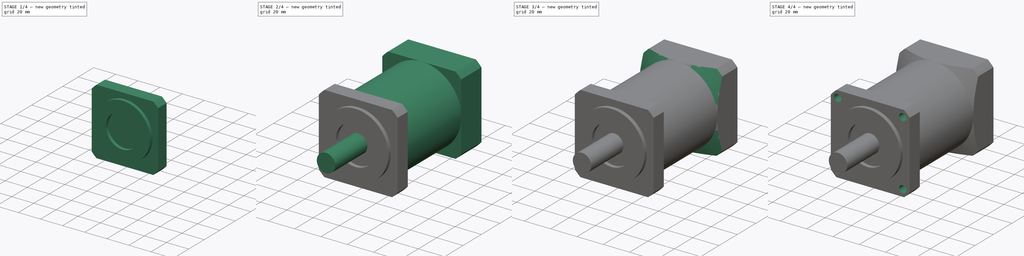
[diagram: build sequence overview — one tinted view per stage of 4, left to right]
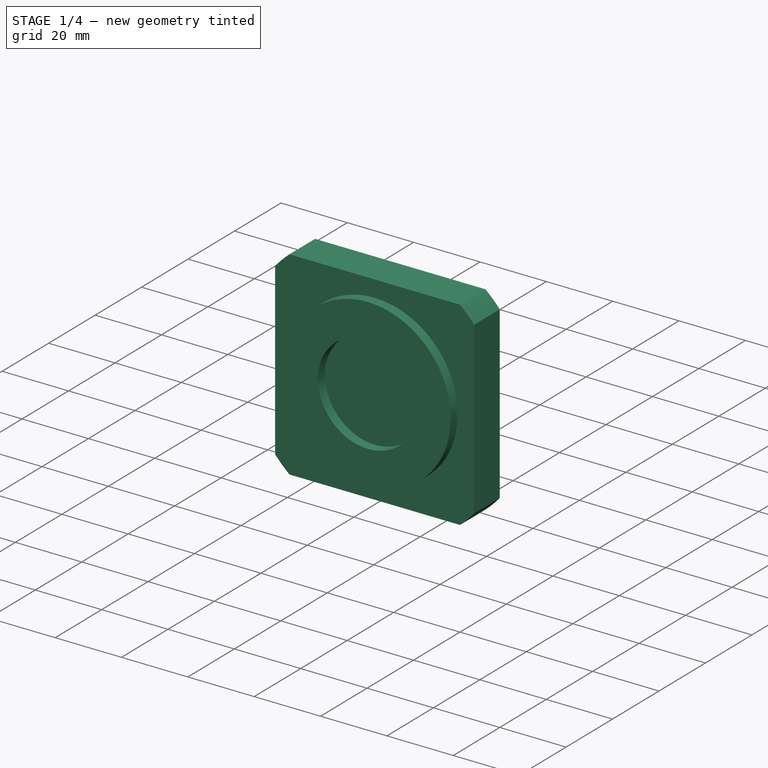
[diagram: stage 1 of 4 — iso view after this stage's code; geometry added in this stage tinted green]
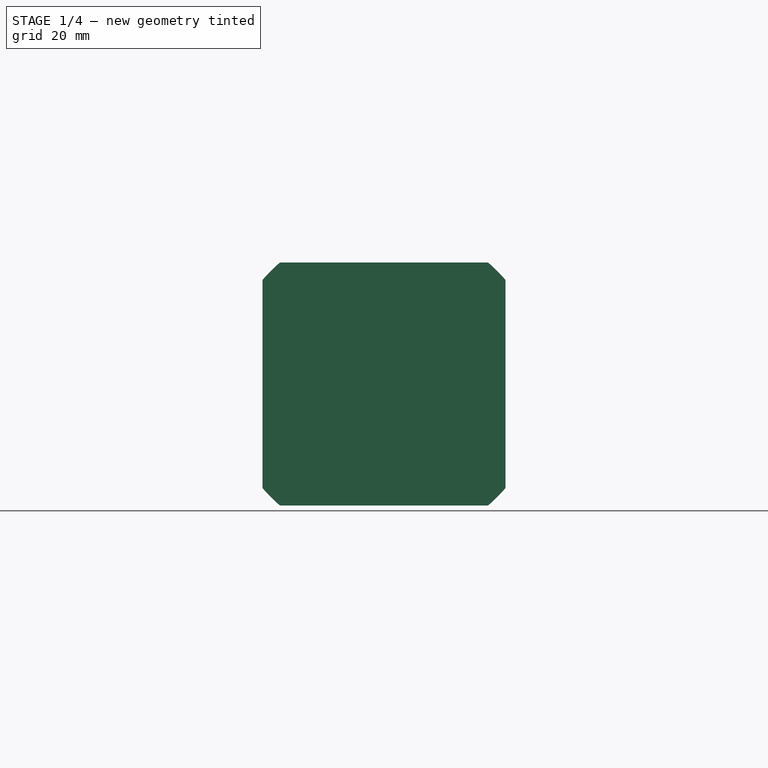
[diagram: stage 1 of 4 — front view after this stage's code; geometry added in this stage tinted green]
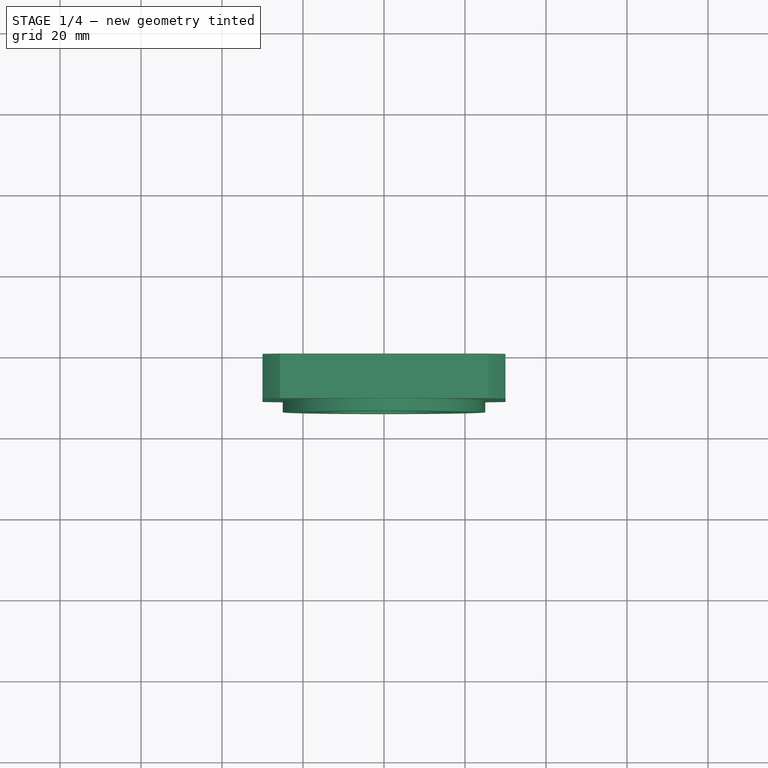
[diagram: stage 1 of 4 — top view after this stage's code; geometry added in this stage tinted green]
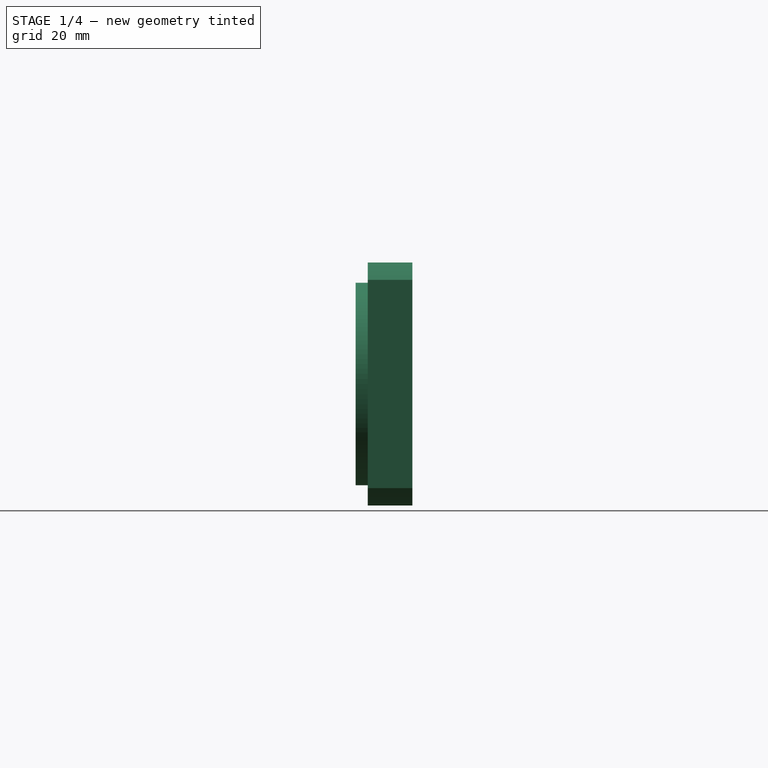
[diagram: stage 1 of 4 — right view after this stage's code; geometry added in this stage tinted green]
FCSTD DOCUMENT  (FreeCAD 0.19R23742 (Git))
Label: gearbox
License: All rights reserved
LicenseURL: http://en.wikipedia.org/wiki/All_rights_reserved
objects: Sketcher::SketchObject×10, PartDesign::Pad×5, PartDesign::Pocket×2, PartDesign::Hole×2, PartDesign::Groove×1, PartDesign::Body×1
note: 31 computed .brp shape members not serialized (recipe doc carries the construction recipe); baked Part::Feature solids carry a one-line shape summary decoded from their .brp

FEATURE [Sketcher::SketchObject] Sketch
  FullyConstrained = true
  MapMode = 5
  Placement = pos=(0,0,0) rot=(1,0,0;1.5708rad)
  Support = -> [XZ_Plane]
  sketch-geometry (8):
    g0: LineSegment StartX=-25.6953 StartY=30 StartZ=0 EndX=25.6953 EndY=30 EndZ=0
    g1: LineSegment StartX=30 StartY=25.6953 StartZ=0 EndX=30 EndY=-25.6953 EndZ=0
    g2: LineSegment StartX=25.6953 StartY=-30 StartZ=0 EndX=-25.6953 EndY=-30 EndZ=0
    g3: LineSegment StartX=-30 StartY=-25.6953 StartZ=0 EndX=-30 EndY=25.6953 EndZ=0
    g4: ArcOfCircle CenterX=0 CenterY=0 CenterZ=0 NormalX=0 NormalY=0 NormalZ=1 AngleXU=0 Radius=39.5 StartAngle=3.84985 EndAngle=4.00413
    g5: ArcOfCircle CenterX=0 CenterY=0 CenterZ=0 NormalX=0 NormalY=0 NormalZ=1 AngleXU=0 Radius=39.5 StartAngle=2.27906 EndAngle=2.43333
    g6: ArcOfCircle CenterX=0 CenterY=0 CenterZ=0 NormalX=0 NormalY=0 NormalZ=1 AngleXU=0 Radius=39.5 StartAngle=0.708262 EndAngle=0.862534
    g7: ArcOfCircle CenterX=0 CenterY=0 CenterZ=0 NormalX=0 NormalY=0 NormalZ=1 AngleXU=0 Radius=39.5 StartAngle=5.42065 EndAngle=5.57492
  constraints (24):
    c: Horizontal(g0)
    c: Horizontal(g2)
    c: Vertical(g1)
    c: Vertical(g3)
    c: Coincident(g4,g-1)
    c: Radius(g4) = 39.5
    c: Coincident(g5,g3)
    c: Equal(g4,g5)
    c: Coincident(g5,g0)
    c: Coincident(g4,g5)
    c: Coincident(g0,g6)
    c: Equal(g4,g6)
    c: Coincident(g6,g1)
    c: Coincident(g4,g6)
    c: Coincident(g1,g7)
    c: Equal(g4,g7)
    c: Coincident(g7,g2)
    c: Coincident(g4,g7)
    c: Coincident(g3,g4)
    c: Coincident(g2,g4)
    c: DistanceX(g3,g1) = 60
    c: DistanceY(g2,g0) = 60
    c: Equal(g0,g2)
    c: Equal(g3,g1)
FEATURE [PartDesign::Pad] Pad
  Direction = (1,1,1)
  Length = 11
  Length2 = 100
  Placement = pos=(0,0,0) rot=(1,0,0;1.5708rad)
  Profile = -> Sketch
  Type = 0
FEATURE [Sketcher::SketchObject] Sketch001
  FullyConstrained = true
  MapMode = 5
  Placement = pos=(0,-11,4.9e-15) rot=(1,0,0;1.5708rad)
  Support = -> [Pad]
  sketch-geometry (2):
    g0: Circle CenterX=0 CenterY=0 CenterZ=0 NormalX=0 NormalY=0 NormalZ=1 AngleXU=0 Radius=25
    g1: Circle CenterX=0 CenterY=0 CenterZ=0 NormalX=0 NormalY=0 NormalZ=1 AngleXU=0 Radius=15
  constraints (4):
    c: Coincident(g0,g-1)
    c: Radius(g0) = 25
    c: Coincident(g1,g0)
    c: Radius(g1) = 15
FEATURE [PartDesign::Pad] Pad001
  BaseFeature = -> Pad
  Direction = (1,1,1)
  Length = 3
  Length2 = 100
  Placement = pos=(0,0,0) rot=(1,0,0;1.5708rad)
  Profile = -> Sketch001
  Type = 0
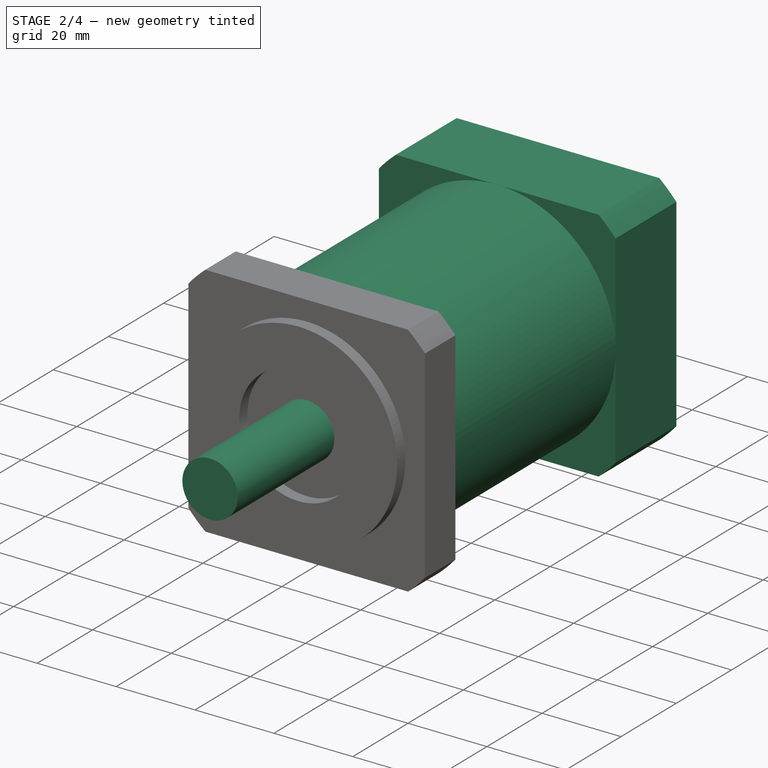
[diagram: stage 2 of 4 — iso view after this stage's code; geometry added in this stage tinted green]
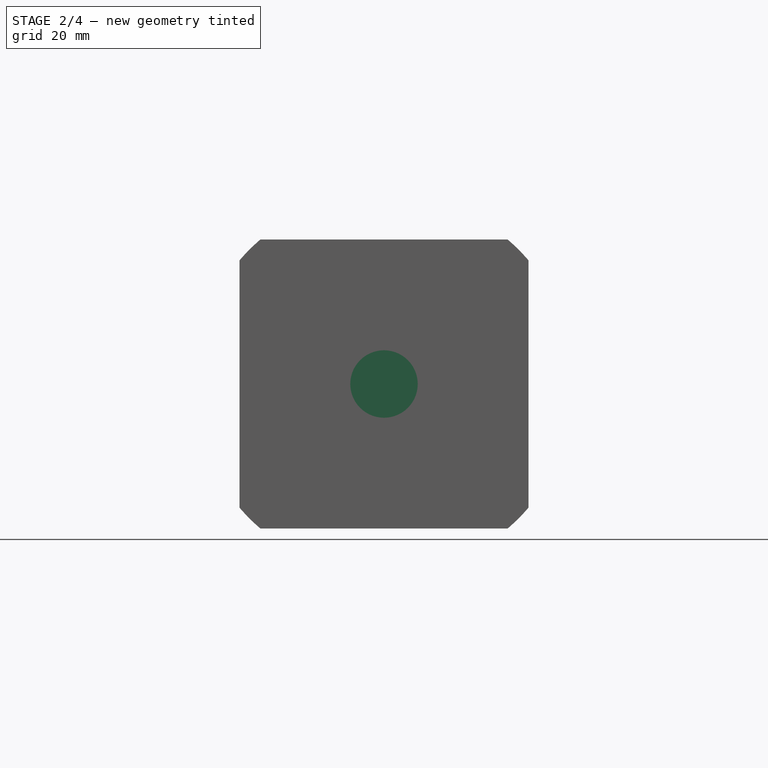
[diagram: stage 2 of 4 — front view after this stage's code; geometry added in this stage tinted green]
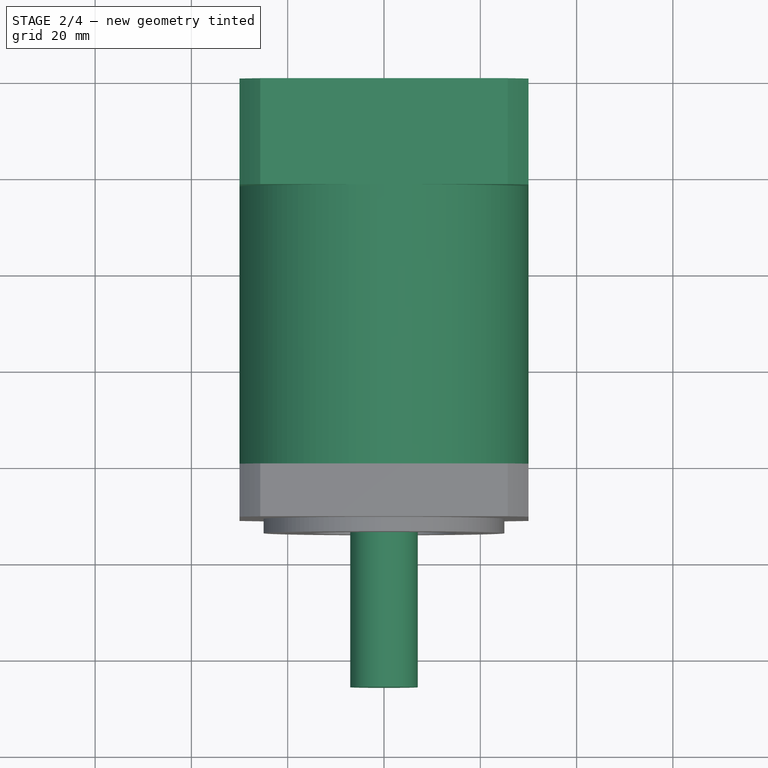
[diagram: stage 2 of 4 — top view after this stage's code; geometry added in this stage tinted green]
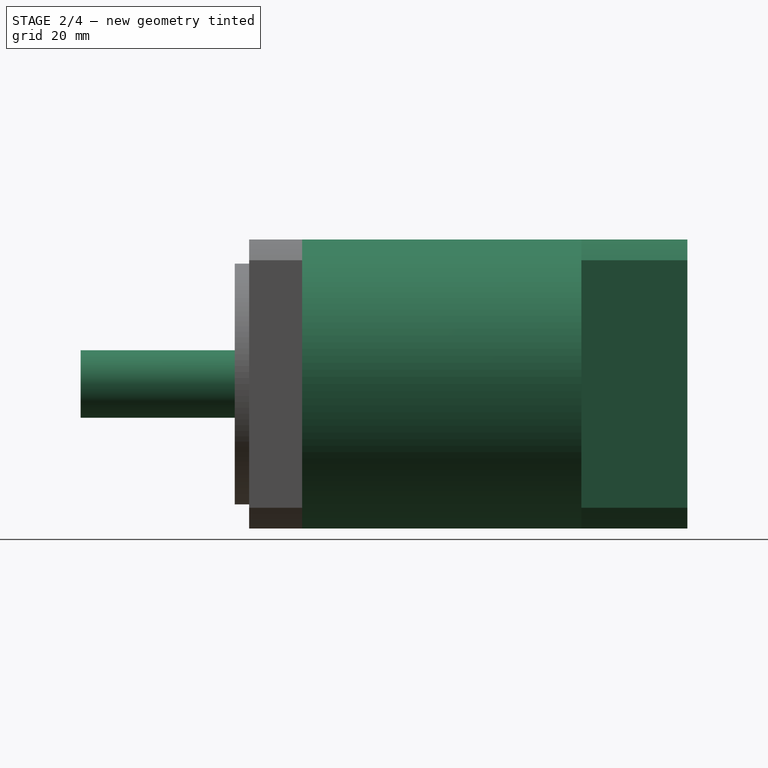
[diagram: stage 2 of 4 — right view after this stage's code; geometry added in this stage tinted green]
FEATURE [Sketcher::SketchObject] Sketch002
  FullyConstrained = true
  MapMode = 5
  Placement = pos=(0,-11,4.9e-15) rot=(1,0,0;1.5708rad)
  Support = -> [Pad001]
  sketch-geometry (1):
    g0: Circle CenterX=0 CenterY=0 CenterZ=0 NormalX=0 NormalY=0 NormalZ=1 AngleXU=0 Radius=7
  constraints (2):
    c: Coincident(g0,g-1)
    c: Radius(g0) = 7
FEATURE [PartDesign::Pad] Pad002
  BaseFeature = -> Pad001
  Direction = (1,1,1)
  Length = 35
  Length2 = 100
  Placement = pos=(0,0,0) rot=(1,0,0;1.5708rad)
  Profile = -> Sketch002
  Type = 0
FEATURE [Sketcher::SketchObject] Sketch003
  FullyConstrained = true
  MapMode = 5
  Placement = pos=(0,0,0) rot=(-1,0,0;1.5708rad)
  Support = -> [Pad002]
  sketch-geometry (1):
    g0: Circle CenterX=0 CenterY=0 CenterZ=0 NormalX=0 NormalY=0 NormalZ=1 AngleXU=0 Radius=30
  constraints (2):
    c: Coincident(g0,g-1)
    c: Radius(g0) = 30
FEATURE [PartDesign::Pad] Pad003
  BaseFeature = -> Pad002
  Direction = (1,1,1)
  Length = 58
  Length2 = 100
  Placement = pos=(0,0,0) rot=(1,0,0;1.5708rad)
  Profile = -> Sketch003
  Type = 0
FEATURE [Sketcher::SketchObject] Sketch004
  ExternalGeometry = -> [Pad003]
  FullyConstrained = true
  MapMode = 5
  Placement = pos=(0,58,-9e-14) rot=(-1,0,0;1.5708rad)
  Support = -> [Pad003]
  sketch-geometry (8):
    g0: ArcOfCircle CenterX=0 CenterY=0 CenterZ=0 NormalX=0 NormalY=0 NormalZ=1 AngleXU=0 Radius=39.5 StartAngle=3.84985 EndAngle=4.00413
    g1: LineSegment StartX=-25.6953 StartY=30 StartZ=0 EndX=25.6953 EndY=30 EndZ=0
    g2: LineSegment StartX=30 StartY=25.6953 StartZ=0 EndX=30 EndY=-25.6953 EndZ=0
    g3: LineSegment StartX=25.6953 StartY=-30 StartZ=0 EndX=-25.6953 EndY=-30 EndZ=0
    g4: LineSegment StartX=-30 StartY=-25.6953 StartZ=0 EndX=-30 EndY=25.6953 EndZ=0
    g5: ArcOfCircle CenterX=0 CenterY=0 CenterZ=0 NormalX=0 NormalY=0 NormalZ=1 AngleXU=0 Radius=39.5 StartAngle=5.42065 EndAngle=5.57492
    g6: ArcOfCircle CenterX=0 CenterY=0 CenterZ=0 NormalX=0 NormalY=0 NormalZ=1 AngleXU=0 Radius=39.5 StartAngle=0.708262 EndAngle=0.862534
    g7: ArcOfCircle CenterX=0 CenterY=0 CenterZ=0 NormalX=0 NormalY=0 NormalZ=1 AngleXU=0 Radius=39.5 StartAngle=2.27906 EndAngle=2.43333
  constraints (22):
    c: Coincident(g0,g-1)
    c: Equal(g-3,g0)
    c: Horizontal(g1)
    c: Horizontal(g3)
    c: Vertical(g2)
    c: Vertical(g4)
    c: Coincident(g0,g4)
    c: Coincident(g0,g3)
    c: Coincident(g0,g5)
    c: Coincident(g3,g5)
    c: Coincident(g5,g2)
    c: Coincident(g5,g6)
    c: Coincident(g2,g6)
    c: Equal(g6,g7)
    c: Coincident(g6,g1)
    c: Coincident(g6,g7)
    c: Coincident(g4,g7)
    c: Coincident(g1,g7)
    c: Equal(g1,g3)
    c: Equal(g2,g4)
    c: Symmetric(g3,g3,g-4)
    c: Symmetric(g2,g2,g-5)
FEATURE [PartDesign::Pad] Pad004
  BaseFeature = -> Pad003
  Direction = (1,1,1)
  Length = 22
  Length2 = 100
  Placement = pos=(0,0,0) rot=(1,0,0;1.5708rad)
  Profile = -> Sketch004
  Type = 0
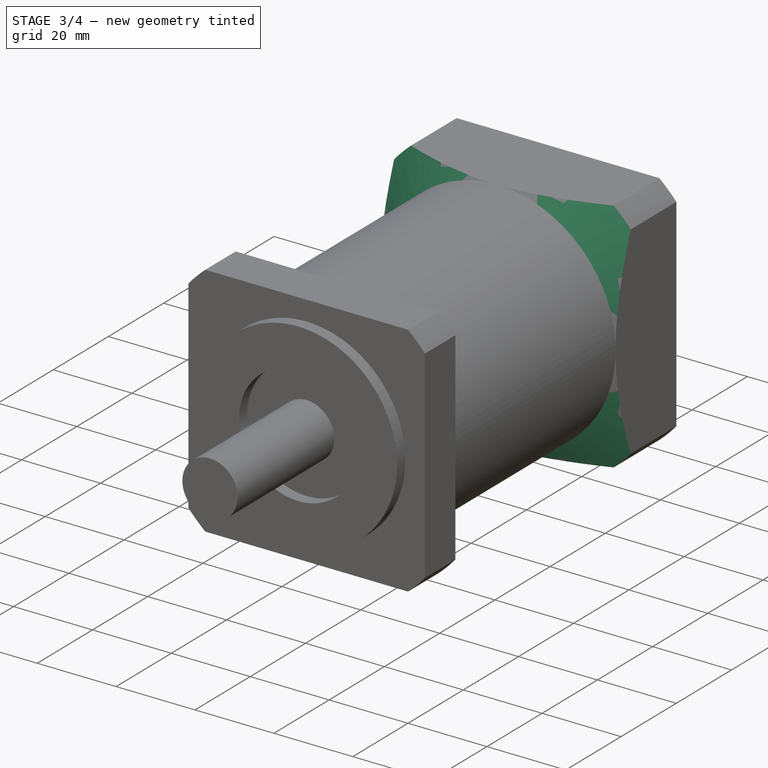
[diagram: stage 3 of 4 — iso view after this stage's code; geometry added in this stage tinted green]
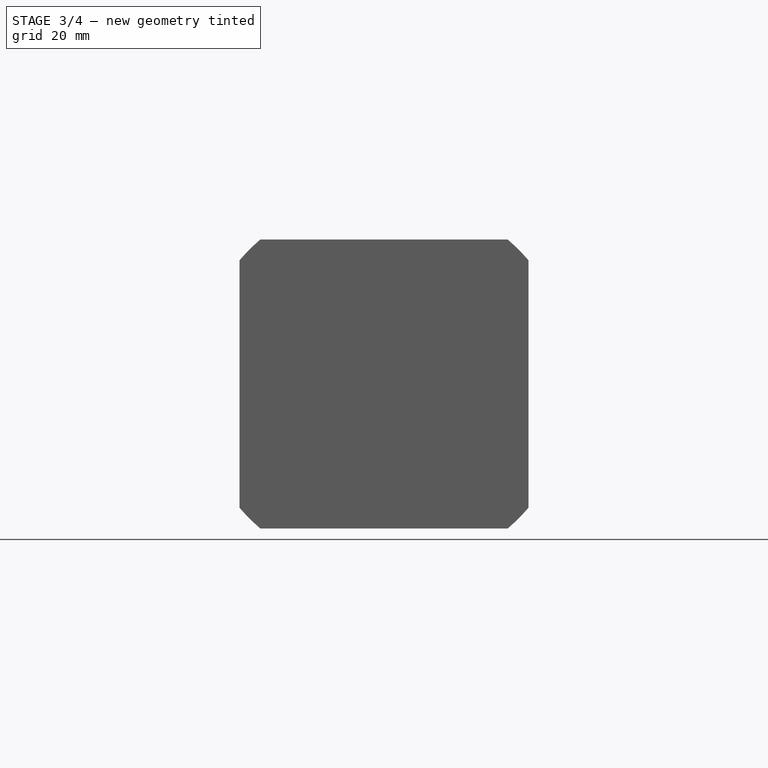
[diagram: stage 3 of 4 — front view after this stage's code; geometry added in this stage tinted green]
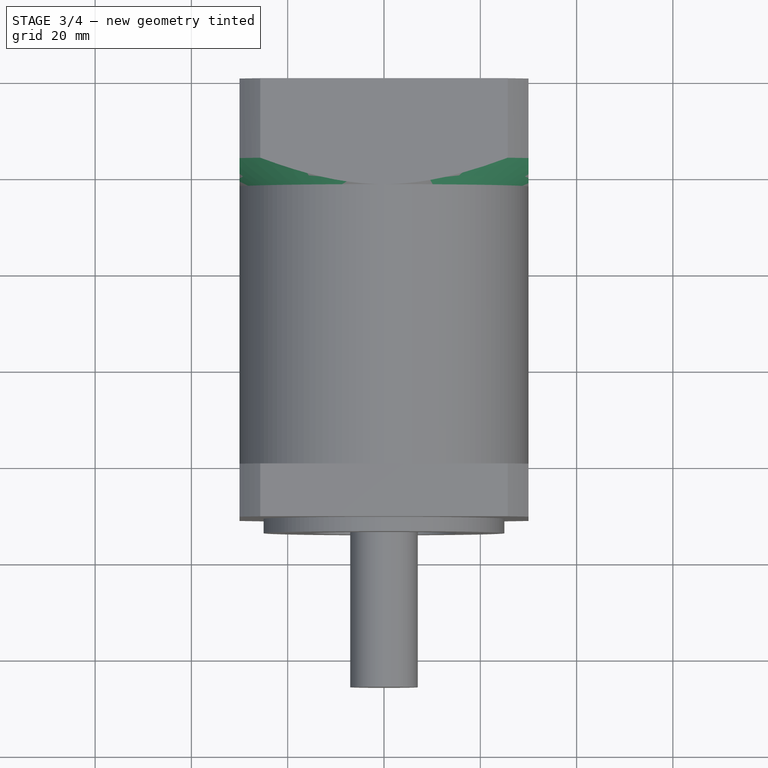
[diagram: stage 3 of 4 — top view after this stage's code; geometry added in this stage tinted green]
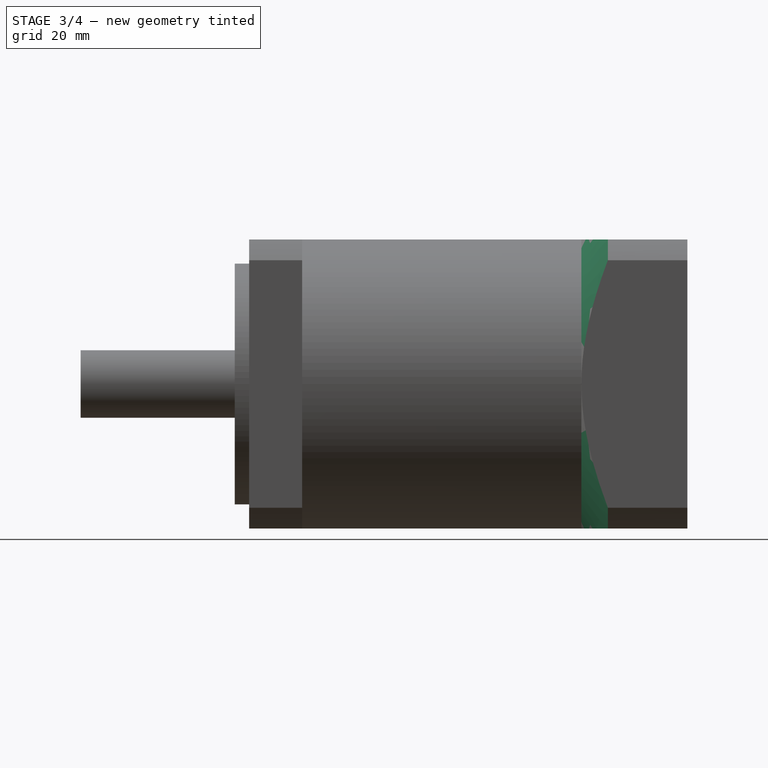
[diagram: stage 3 of 4 — right view after this stage's code; geometry added in this stage tinted green]
FEATURE [Sketcher::SketchObject] Sketch005
  ExternalGeometry = -> [Pad004]
  FullyConstrained = true
  MapMode = 5
  Placement = pos=(0,0,0) rot=(0.57735,0.57735,0.57735;2.0944rad)
  Support = -> [YZ_Plane]
  sketch-geometry (3):
    g0: LineSegment StartX=80 StartY=68.1051 StartZ=0 EndX=58 EndY=30 EndZ=0
    g1: LineSegment StartX=80 StartY=68.1051 StartZ=0 EndX=58 EndY=68.1051 EndZ=0
    g2: LineSegment StartX=58 StartY=68.1051 StartZ=0 EndX=58 EndY=30 EndZ=0
  constraints (8):
    c: Coincident(g1,g0)
    c: Horizontal(g1)
    c: Coincident(g2,g1)
    c: Coincident(g2,g0)
    c: Vertical(g2)
    c: Coincident(g0,g-3)
    c: Angle(g0,g2) = 0.523599
    c: Vertical(g0,g-4)
FEATURE [PartDesign::Groove] Groove
  Angle = 360
  Axis = (1e-16,1,-1e-16)
  Base = (0,0,0)
  BaseFeature = -> Pad004
  Placement = pos=(0,0,0) rot=(1,0,0;1.5708rad)
  Profile = -> Sketch005
  ReferenceAxis = -> Y_Axis
  Reversed = true
FEATURE [Sketcher::SketchObject] Sketch006
  FullyConstrained = true
  MapMode = 5
  Placement = pos=(0,80,-1.514e-13) rot=(-1,0,0;1.5708rad)
  Support = -> [Groove]
  sketch-geometry (1):
    g0: Circle CenterX=0 CenterY=0 CenterZ=0 NormalX=0 NormalY=0 NormalZ=1 AngleXU=0 Radius=19.05
  constraints (2):
    c: Coincident(g0,g-1)
    c: Radius(g0) = 19.05
FEATURE [PartDesign::Pocket] Pocket
  BaseFeature = -> Groove
  Length = 4
  Length2 = 100
  Placement = pos=(0,0,0) rot=(1,0,0;1.5708rad)
  Profile = -> Sketch006
  Type = 0
FEATURE [Sketcher::SketchObject] Sketch007
  FullyConstrained = true
  MapMode = 5
  Placement = pos=(0,80,-1.514e-13) rot=(-1,0,0;1.5708rad)
  Support = -> [Pocket]
  sketch-geometry (10):
    g0: LineSegment StartX=-23.55 StartY=23.55 StartZ=0 EndX=23.55 EndY=23.55 EndZ=0
    g1: LineSegment StartX=23.55 StartY=23.55 StartZ=0 EndX=23.55 EndY=-23.55 EndZ=0
    g2: LineSegment StartX=23.55 StartY=-23.55 StartZ=0 EndX=-23.55 EndY=-23.55 EndZ=0
    g3: LineSegment StartX=-23.55 StartY=-23.55 StartZ=0 EndX=-23.55 EndY=23.55 EndZ=0
    g4: GeomPoint X=-23.55 Y=0 Z=0
    g5: GeomPoint X=0 Y=-23.55 Z=0
    g6: Circle CenterX=-23.55 CenterY=-23.55 CenterZ=0 NormalX=0 NormalY=0 NormalZ=1 AngleXU=0 Radius=2
    g7: Circle CenterX=23.55 CenterY=-23.55 CenterZ=0 NormalX=0 NormalY=0 NormalZ=1 AngleXU=0 Radius=2
    g8: Circle CenterX=-23.55 CenterY=23.55 CenterZ=0 NormalX=0 NormalY=0 NormalZ=1 AngleXU=0 Radius=2
    g9: Circle CenterX=23.55 CenterY=23.55 CenterZ=0 NormalX=0 NormalY=0 NormalZ=1 AngleXU=0 Radius=2
  constraints (22):
    c: Coincident(g0,g1)
    c: Coincident(g1,g2)
    c: Coincident(g2,g3)
    c: Coincident(g3,g0)
    c: Horizontal(g0)
    c: Horizontal(g2)
    c: Vertical(g1)
    c: Vertical(g3)
    c: Symmetric(g2,g2,g5)
    c: Symmetric(g3,g3,g4)
    c: PointOnObject(g4,g-1)
    c: PointOnObject(g5,g-2)
    c: Distance(g1) = 47.1
    c: Equal(g1,g2)
    c: Coincident(g6,g2)
    c: Coincident(g7,g1)
    c: Coincident(g8,g0)
    c: Coincident(g9,g0)
    c: Equal(g8,g9)
    c: Equal(g9,g7)
    c: Equal(g6,g7)
    c: Radius(g8) = 2
FEATURE [PartDesign::Hole] Hole
  BaseFeature = -> Pocket
  Depth = 8
  DepthType = 0
  Diameter = 4.5
  DrillPoint = 1
  DrillPointAngle = 118
  HoleCutCountersinkAngle = 90
  HoleCutDepth = 0
  HoleCutDiameter = 8
  HoleCutType = 0
  ModelActualThread = false
  Placement = pos=(0,0,0) rot=(1,0,0;1.5708rad)
  Profile = -> Sketch007
  Tapered = false
  TaperedAngle = 90
  ThreadAngle = 0
  ThreadClass = 0
  ThreadCutOffInner = 0
  ThreadCutOffOuter = 0
  ThreadDirection = 0
  ThreadFit = 0
  ThreadPitch = 0
  ThreadSize = 11
  ThreadType = 1
  Threaded = false
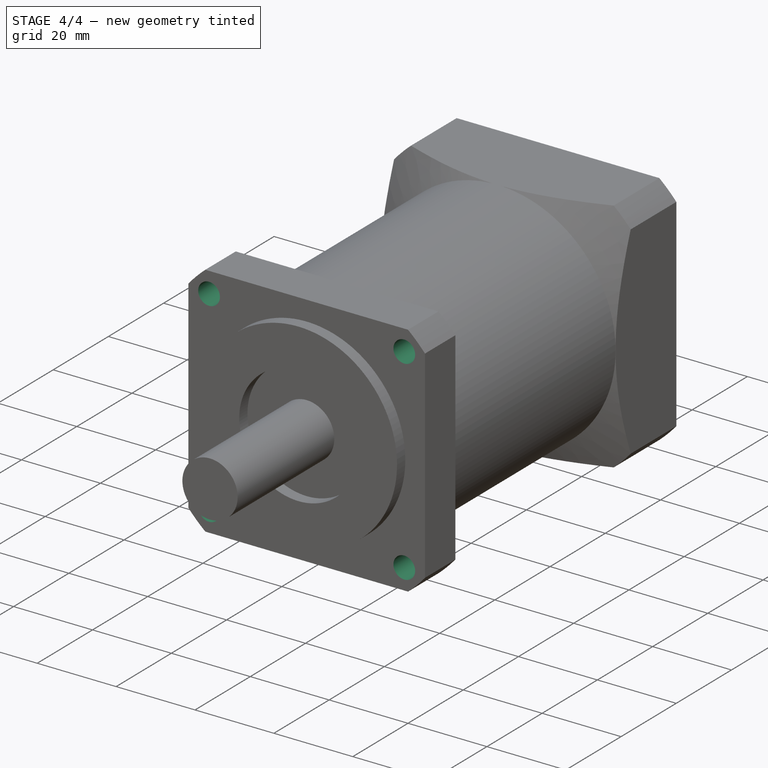
[diagram: stage 4 of 4 — iso view after this stage's code; geometry added in this stage tinted green]
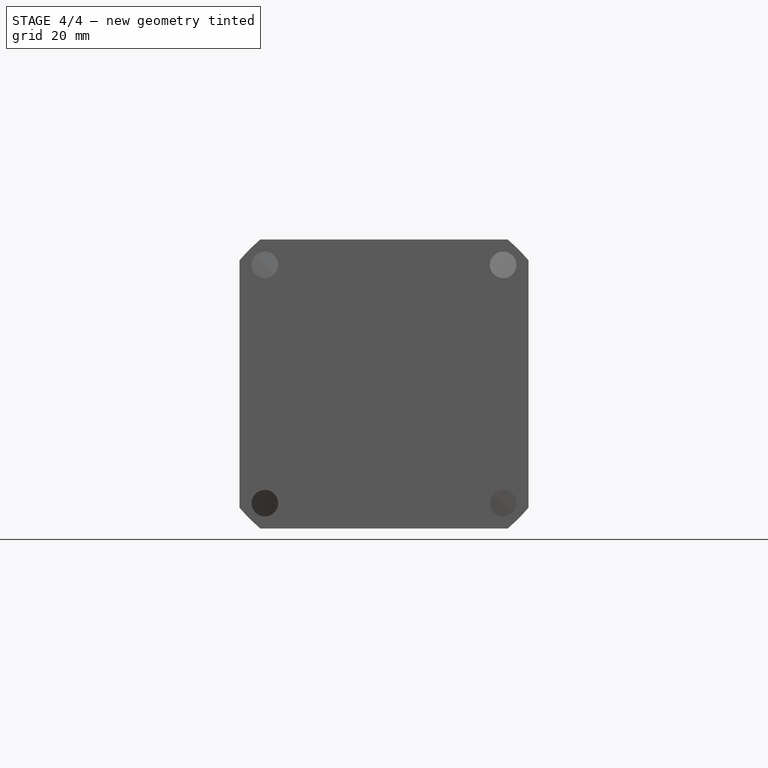
[diagram: stage 4 of 4 — front view after this stage's code; geometry added in this stage tinted green]
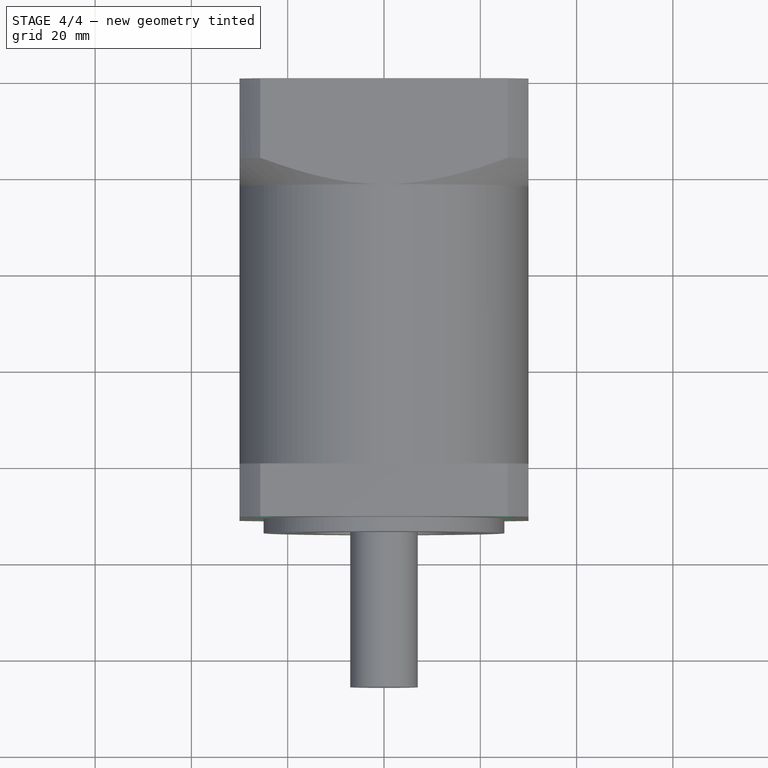
[diagram: stage 4 of 4 — top view after this stage's code; geometry added in this stage tinted green]
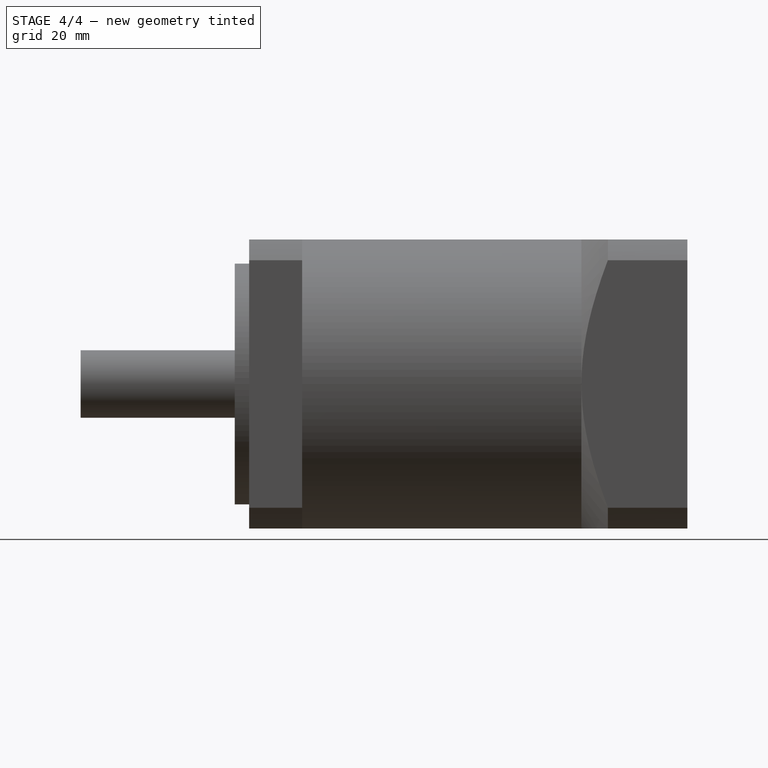
[diagram: stage 4 of 4 — right view after this stage's code; geometry added in this stage tinted green]
FEATURE [Sketcher::SketchObject] Sketch008
  FullyConstrained = true
  MapMode = 5
  Placement = pos=(0,76,-2.13e-13) rot=(-1,0,0;1.5708rad)
  Support = -> [Hole]
  sketch-geometry (1):
    g0: Circle CenterX=0 CenterY=0 CenterZ=0 NormalX=0 NormalY=0 NormalZ=1 AngleXU=0 Radius=4
  constraints (2):
    c: Coincident(g0,g-1)
    c: Radius(g0) = 4
FEATURE [PartDesign::Pocket] Pocket001
  BaseFeature = -> Hole
  Length = 27
  Length2 = 100
  Placement = pos=(0,0,0) rot=(1,0,0;1.5708rad)
  Profile = -> Sketch008
  Type = 0
FEATURE [Sketcher::SketchObject] Sketch009
  ExternalGeometry = -> [Pocket001]
  FullyConstrained = true
  MapMode = 5
  Placement = pos=(0,-11,4.9e-15) rot=(1,0,0;1.5708rad)
  Support = -> [Pocket001]
  sketch-geometry (9):
    g0: LineSegment StartX=-24.7487 StartY=24.7487 StartZ=0 EndX=24.7487 EndY=24.7487 EndZ=0
    g1: LineSegment StartX=24.7487 StartY=24.7487 StartZ=0 EndX=24.7487 EndY=-24.7487 EndZ=0
    g2: LineSegment StartX=24.7487 StartY=-24.7487 StartZ=0 EndX=-24.7487 EndY=-24.7487 EndZ=0
    g3: LineSegment StartX=-24.7487 StartY=-24.7487 StartZ=0 EndX=-24.7487 EndY=24.7487 EndZ=0
    g4: Circle CenterX=0 CenterY=0 CenterZ=0 NormalX=0 NormalY=0 NormalZ=1 AngleXU=0 Radius=35
    g5: Circle CenterX=-24.7487 CenterY=24.7487 CenterZ=0 NormalX=0 NormalY=0 NormalZ=1 AngleXU=0 Radius=2.75
    g6: Circle CenterX=24.7487 CenterY=24.7487 CenterZ=0 NormalX=0 NormalY=0 NormalZ=1 AngleXU=0 Radius=2.75
    g7: Circle CenterX=24.7487 CenterY=-24.7487 CenterZ=0 NormalX=0 NormalY=0 NormalZ=1 AngleXU=0 Radius=2.75
    g8: Circle CenterX=-24.7487 CenterY=-24.7487 CenterZ=0 NormalX=0 NormalY=0 NormalZ=1 AngleXU=0 Radius=2.75
  constraints (23):
    c: Coincident(g0,g1)
    c: Coincident(g1,g2)
    c: Coincident(g2,g3)
    c: Coincident(g3,g0)
    c: Horizontal(g0)
    c: Horizontal(g2)
    c: Vertical(g1)
    c: Vertical(g3)
    c: Equal(g0,g1)
    c: PointOnObject(g0,g4)
    c: PointOnObject(g2,g4)
    c: PointOnObject(g0,g4)
    c: Radius(g4) = 35
    c: PointOnObject(g4,g-1)
    c: PointOnObject(g4,g-2)
    c: Coincident(g5,g0)
    c: Coincident(g6,g0)
    c: Coincident(g7,g1)
    c: Coincident(g8,g2)
    c: Equal(g5,g8)
    c: Equal(g8,g7)
    c: Equal(g7,g6)
    c: Radius(g6) = 2.75
FEATURE [PartDesign::Hole] Hole001
  BaseFeature = -> Pocket001
  Depth = 25
  DepthType = 0
  Diameter = 5.5
  DrillPoint = 1
  DrillPointAngle = 118
  HoleCutCountersinkAngle = 90
  HoleCutDepth = 0
  HoleCutDiameter = 0
  HoleCutType = 0
  ModelActualThread = false
  Placement = pos=(0,0,0) rot=(1,0,0;1.5708rad)
  Profile = -> Sketch009
  Tapered = false
  TaperedAngle = 90
  ThreadAngle = 0
  ThreadClass = 0
  ThreadCutOffInner = 0
  ThreadCutOffOuter = 0
  ThreadDirection = 0
  ThreadFit = 0
  ThreadPitch = 0
  ThreadSize = 0
  ThreadType = 0
  Threaded = false
FEATURE [PartDesign::Body] Body
  Group = -> [Sketch,Pad,Sketch001,Pad001,Sketch002,Pad002,Sketch003,Pad003,Sketch004,Pad004,Sketch005,Groove,Sketch006,Pocket,Sketch007,Hole,Sketch008,Pocket001,Sketch009,Hole001]
  Origin = -> Origin
  Tip = -> Hole001
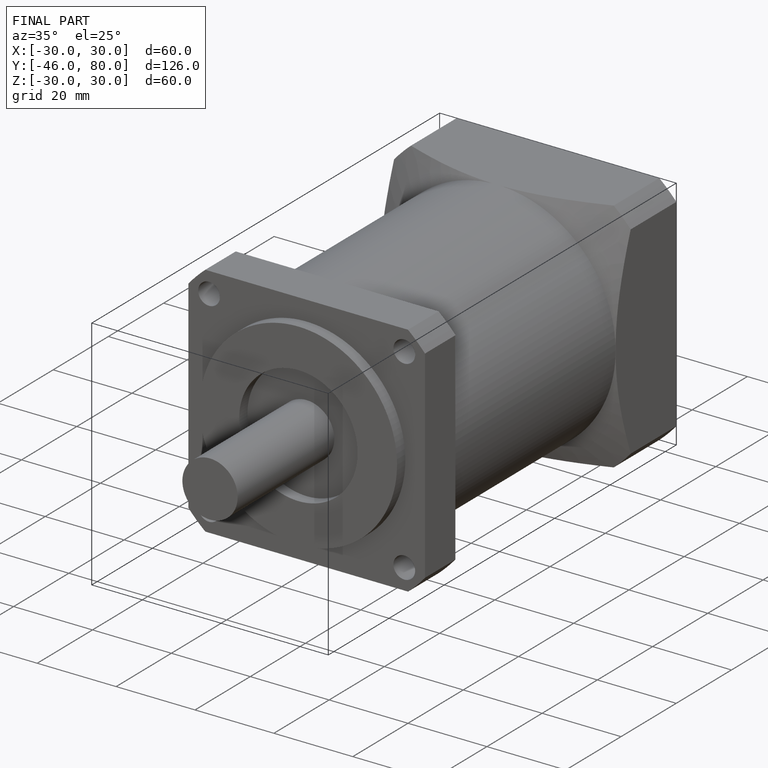
[diagram: finished part — iso view with bounding-box wireframe]
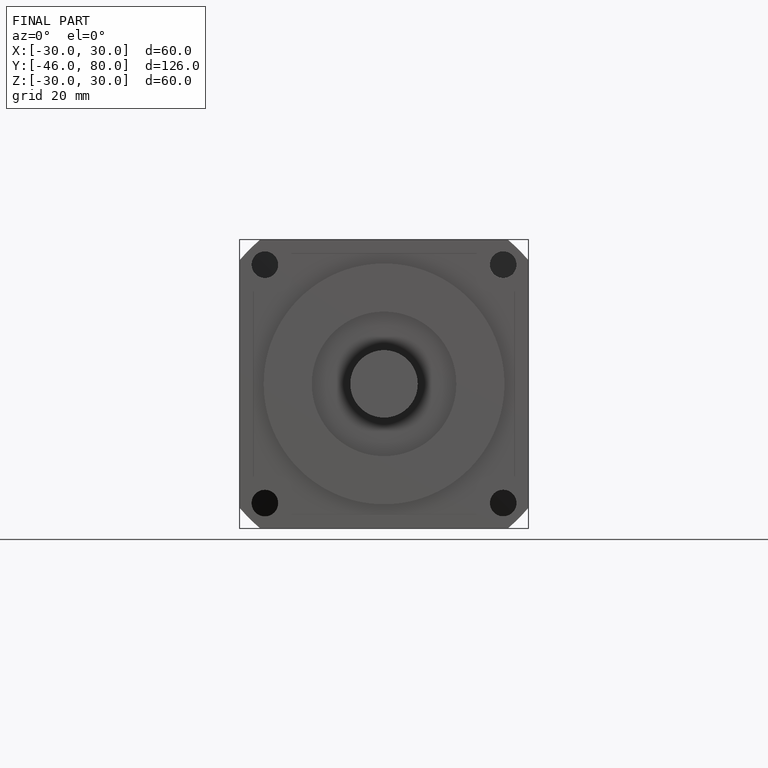
[diagram: finished part — front view with bounding-box wireframe]
